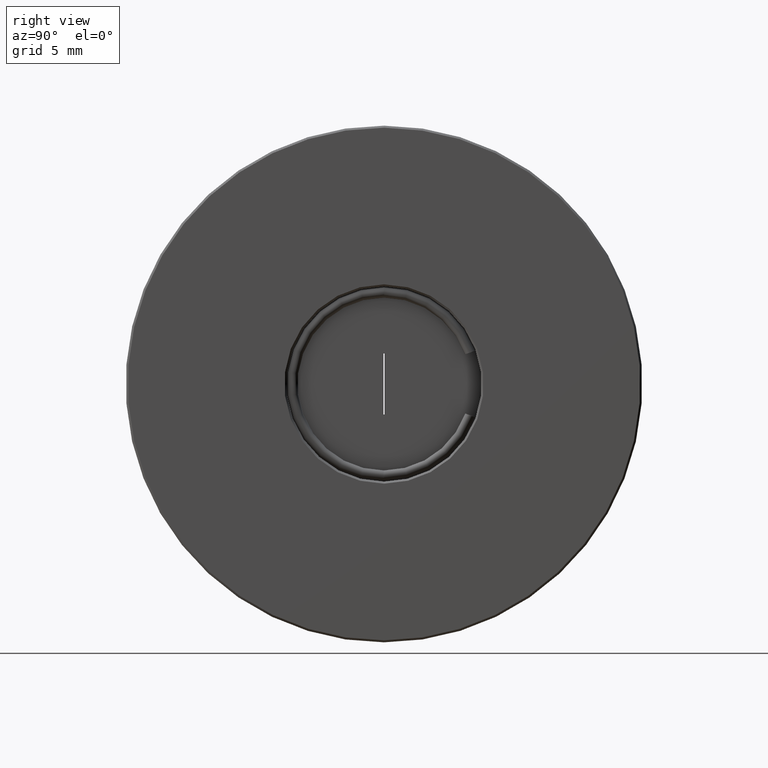
[diagram: clean part render]
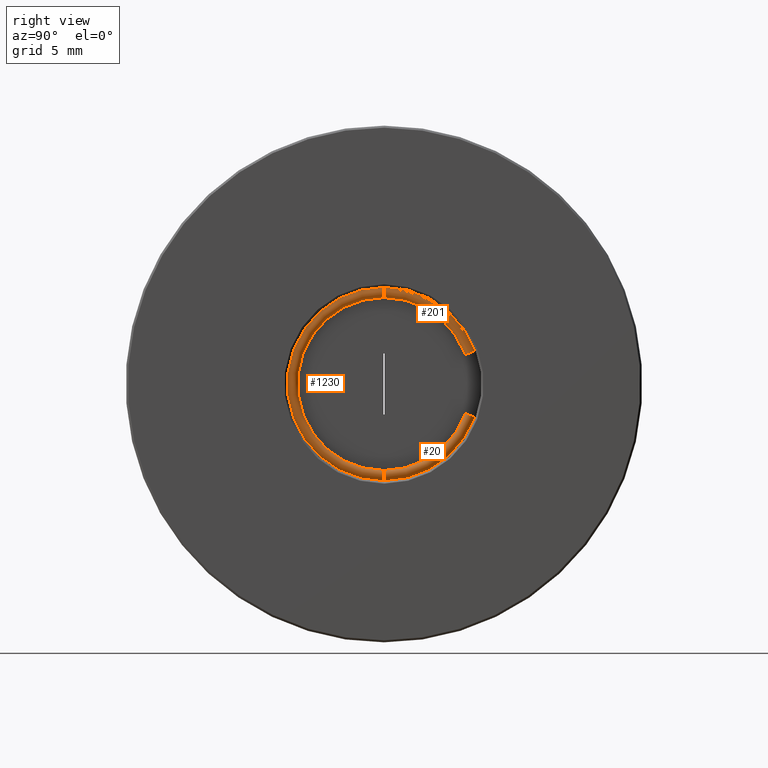
[diagram: same view with one multi-face feature highlighted, each face labeled with its STEP entity id]
A machine part, right view. The highlighted faces form ONE feature: a constant-radius fillet chain: 3 tangent blend faces with common blend radius 0.25 mm. The faces share edges in the B-rep.
Their STEP definitions:
[1] entity #201 (Torus):
#107 = DIRECTION ( 'NONE',  ( -1.221245327047478942E-15, -6.581508912423552347E-11, -1.000000000000000000 ) ) ;
#110 = EDGE_CURVE ( 'NONE', #1285, #815, #156, .T. ) ;
#156 = CIRCLE ( 'NONE', #551, 4.250000000000000000 ) ;
#172 = ORIENTED_EDGE ( 'NONE', *, *, #398, .F. ) ;
#195 = CARTESIAN_POINT ( 'NONE',  ( -4.034863851253005507, 1.436758841381168494, 29.89999999999999858 ) ) ;
#201 = ADVANCED_FACE ( 'NONE', ( #602 ), #406, .T. ) ;
#272 = ORIENTED_EDGE ( 'NONE', *, *, #955, .T. ) ;
#286 = VERTEX_POINT ( 'NONE', #308 ) ;
#308 = CARTESIAN_POINT ( 'NONE',  ( -4.034863851252984190, 5.900298789925018994, 27.02459568050306515 ) ) ;
#319 = ORIENTED_EDGE ( 'NONE', *, *, #110, .F. ) ;
#362 = AXIS2_PLACEMENT_3D ( 'NONE', #509, #1145, #1233 ) ;
#398 = EDGE_CURVE ( 'NONE', #286, #1285, #451, .T. ) ;
#406 = TOROIDAL_SURFACE ( 'NONE', #474, 4.500000000000000000, 0.2500000000000000000 ) ;
#451 = CIRCLE ( 'NONE', #622, 0.2500000000000000000 ) ;
#474 = AXIS2_PLACEMENT_3D ( 'NONE', #533, #567, #107 ) ;
#504 = CIRCLE ( 'NONE', #1312, 0.2500000000000002220 ) ;
#509 = CARTESIAN_POINT ( 'NONE',  ( -4.034863851253000178, 1.436758841085000071, 25.39999999999999858 ) ) ;
#533 = CARTESIAN_POINT ( 'NONE',  ( -4.034863851253000178, 1.436758841085000071, 25.39999999999999858 ) ) ;
#551 = AXIS2_PLACEMENT_3D ( 'NONE', #1211, #1249, #1120 ) ;
#567 = DIRECTION ( 'NONE',  ( 1.000000000000000000, -3.053113317719177725E-15, -1.221245326846538123E-15 ) ) ;
#578 = DIRECTION ( 'NONE',  ( 1.033689675075031444E-16, 0.3420201432638105277, -0.9396926208084229737 ) ) ;
#602 = FACE_OUTER_BOUND ( 'NONE', #1045, .T. ) ;
#622 = AXIS2_PLACEMENT_3D ( 'NONE', #893, #578, #1022 ) ;
#631 = ORIENTED_EDGE ( 'NONE', *, *, #658, .T. ) ;
#658 = EDGE_CURVE ( 'NONE', #286, #1351, #987, .T. ) ;
#815 = VERTEX_POINT ( 'NONE', #865 ) ;
#865 = CARTESIAN_POINT ( 'NONE',  ( -4.034863851252997513, 1.436758841364714767, 29.64999999999999858 ) ) ;
#893 = CARTESIAN_POINT ( 'NONE',  ( -4.034863851253018829, 5.665375634722910725, 26.93909064468711634 ) ) ;
#955 = EDGE_CURVE ( 'NONE', #1351, #815, #504, .T. ) ;
#987 = CIRCLE ( 'NONE', #362, 4.750000000000000000 ) ;
#1022 = DIRECTION ( 'NONE',  ( 3.469446951953614189E-15, -0.9396926208084209753, -0.3420201432638159122 ) ) ;
#1045 = EDGE_LOOP ( 'NONE', ( #172, #631, #272, #319 ) ) ;
#1069 = DIRECTION ( 'NONE',  ( 3.053113317638805026E-15, 1.000000000000000000, -6.581520653068446578E-11 ) ) ;
#1120 = DIRECTION ( 'NONE',  ( 3.061276722312012589E-15, 1.000000000000000000, -6.581581684878969820E-11 ) ) ;
#1145 = DIRECTION ( 'NONE',  ( 1.000000000000000000, -3.053113317719177725E-15, -1.221245326846538123E-15 ) ) ;
#1170 = CARTESIAN_POINT ( 'NONE',  ( -4.034863851252985967, 5.430452479520808673, 26.85358560887116042 ) ) ;
#1211 = CARTESIAN_POINT ( 'NONE',  ( -4.034863851253000178, 1.436758841085000071, 25.39999999999999858 ) ) ;
#1233 = DIRECTION ( 'NONE',  ( 3.104242009642707308E-15, 1.000000000000000000, -6.581577388350236595E-11 ) ) ;
#1249 = DIRECTION ( 'NONE',  ( 1.000000000000000000, -3.053113317719177725E-15, -1.221245326846538123E-15 ) ) ;
#1285 = VERTEX_POINT ( 'NONE', #1170 ) ;
#1312 = AXIS2_PLACEMENT_3D ( 'NONE', #195, #1069, #1403 ) ;
#1351 = VERTEX_POINT ( 'NONE', #1411 ) ;
#1403 = DIRECTION ( 'NONE',  ( -1.000000000000000000, 3.469446951953611033E-15, 0.000000000000000000 ) ) ;
#1411 = CARTESIAN_POINT ( 'NONE',  ( -4.034863851252993960, 1.436758841397622444, 30.14999999999999858 ) ) ;
[2] entity #1230 (Torus):
#16 = DIRECTION ( 'NONE',  ( 1.000000000000000000, -3.053113317719177725E-15, -1.221245326846538123E-15 ) ) ;
#27 = DIRECTION ( 'NONE',  ( 1.000000000000000000, -3.053113317719177725E-15, -1.221245326846538123E-15 ) ) ;
#28 = DIRECTION ( 'NONE',  ( -1.221245327047478942E-15, -6.581508912423552347E-11, -1.000000000000000000 ) ) ;
#55 = CARTESIAN_POINT ( 'NONE',  ( -4.034863851253000178, 1.436758840805285820, 21.14999999999999858 ) ) ;
#106 = ORIENTED_EDGE ( 'NONE', *, *, #674, .F. ) ;
#124 = CARTESIAN_POINT ( 'NONE',  ( -4.034863851253000178, 1.436758841085000071, 25.39999999999999858 ) ) ;
#163 = VERTEX_POINT ( 'NONE', #55 ) ;
#195 = CARTESIAN_POINT ( 'NONE',  ( -4.034863851253005507, 1.436758841381168494, 29.89999999999999858 ) ) ;
#225 = AXIS2_PLACEMENT_3D ( 'NONE', #707, #724, #1356 ) ;
#425 = TOROIDAL_SURFACE ( 'NONE', #1338, 4.500000000000000000, 0.2500000000000000000 ) ;
#491 = EDGE_LOOP ( 'NONE', ( #1314, #564, #695, #106 ) ) ;
#504 = CIRCLE ( 'NONE', #1312, 0.2500000000000002220 ) ;
#564 = ORIENTED_EDGE ( 'NONE', *, *, #731, .T. ) ;
#584 = VERTEX_POINT ( 'NONE', #1028 ) ;
#674 = EDGE_CURVE ( 'NONE', #815, #163, #962, .T. ) ;
#695 = ORIENTED_EDGE ( 'NONE', *, *, #1280, .T. ) ;
#707 = CARTESIAN_POINT ( 'NONE',  ( -4.034863851252994849, 1.436758840788832314, 20.89999999999999858 ) ) ;
#724 = DIRECTION ( 'NONE',  ( -3.053113317638805026E-15, -1.000000000000000000, 6.581508406600454517E-11 ) ) ;
#731 = EDGE_CURVE ( 'NONE', #1351, #584, #1419, .T. ) ;
#785 = FACE_OUTER_BOUND ( 'NONE', #491, .T. ) ;
#811 = CARTESIAN_POINT ( 'NONE',  ( -4.034863851253000178, 1.436758841085000071, 25.39999999999999858 ) ) ;
#815 = VERTEX_POINT ( 'NONE', #865 ) ;
#865 = CARTESIAN_POINT ( 'NONE',  ( -4.034863851252997513, 1.436758841364714767, 29.64999999999999858 ) ) ;
#908 = AXIS2_PLACEMENT_3D ( 'NONE', #1113, #27, #1240 ) ;
#944 = DIRECTION ( 'NONE',  ( 1.000000000000000000, -3.053113317719177725E-15, -1.221245326846538123E-15 ) ) ;
#955 = EDGE_CURVE ( 'NONE', #1351, #815, #504, .T. ) ;
#962 = CIRCLE ( 'NONE', #908, 4.250000000000000000 ) ;
#1028 = CARTESIAN_POINT ( 'NONE',  ( -4.034863851253006395, 1.436758840772378365, 20.64999999999999858 ) ) ;
#1069 = DIRECTION ( 'NONE',  ( 3.053113317638805026E-15, 1.000000000000000000, -6.581520653068446578E-11 ) ) ;
#1113 = CARTESIAN_POINT ( 'NONE',  ( -4.034863851253000178, 1.436758841085000071, 25.39999999999999858 ) ) ;
#1230 = ADVANCED_FACE ( 'NONE', ( #785 ), #425, .T. ) ;
#1237 = CIRCLE ( 'NONE', #225, 0.2500000000000002220 ) ;
#1240 = DIRECTION ( 'NONE',  ( 3.061276722312012589E-15, 1.000000000000000000, -6.581581684878969820E-11 ) ) ;
#1280 = EDGE_CURVE ( 'NONE', #584, #163, #1237, .T. ) ;
#1312 = AXIS2_PLACEMENT_3D ( 'NONE', #195, #1069, #1403 ) ;
#1314 = ORIENTED_EDGE ( 'NONE', *, *, #955, .F. ) ;
#1338 = AXIS2_PLACEMENT_3D ( 'NONE', #124, #16, #28 ) ;
#1347 = AXIS2_PLACEMENT_3D ( 'NONE', #811, #944, #1382 ) ;
#1351 = VERTEX_POINT ( 'NONE', #1411 ) ;
#1356 = DIRECTION ( 'NONE',  ( 1.000000000000000000, -3.469446951953611033E-15, 0.000000000000000000 ) ) ;
#1382 = DIRECTION ( 'NONE',  ( 3.104242009642707308E-15, 1.000000000000000000, -6.581577388350236595E-11 ) ) ;
#1403 = DIRECTION ( 'NONE',  ( -1.000000000000000000, 3.469446951953611033E-15, 0.000000000000000000 ) ) ;
#1411 = CARTESIAN_POINT ( 'NONE',  ( -4.034863851252993960, 1.436758841397622444, 30.14999999999999858 ) ) ;
#1419 = CIRCLE ( 'NONE', #1347, 4.750000000000000000 ) ;
[3] entity #20 (Torus):
#20 = ADVANCED_FACE ( 'NONE', ( #1143 ), #114, .T. ) ;
#55 = CARTESIAN_POINT ( 'NONE',  ( -4.034863851253000178, 1.436758840805285820, 21.14999999999999858 ) ) ;
#59 = ORIENTED_EDGE ( 'NONE', *, *, #1280, .F. ) ;
#68 = CIRCLE ( 'NONE', #596, 4.750000000000000000 ) ;
#75 = ORIENTED_EDGE ( 'NONE', *, *, #569, .T. ) ;
#114 = TOROIDAL_SURFACE ( 'NONE', #592, 4.500000000000000000, 0.2500000000000000000 ) ;
#163 = VERTEX_POINT ( 'NONE', #55 ) ;
#207 = AXIS2_PLACEMENT_3D ( 'NONE', #1252, #813, #927 ) ;
#225 = AXIS2_PLACEMENT_3D ( 'NONE', #707, #724, #1356 ) ;
#254 = DIRECTION ( 'NONE',  ( 3.104242009642707308E-15, 1.000000000000000000, -6.581577388350236595E-11 ) ) ;
#478 = AXIS2_PLACEMENT_3D ( 'NONE', #514, #1386, #632 ) ;
#482 = DIRECTION ( 'NONE',  ( 1.000000000000000000, -3.053113317719177725E-15, -1.221245326846538123E-15 ) ) ;
#499 = EDGE_CURVE ( 'NONE', #163, #765, #529, .T. ) ;
#514 = CARTESIAN_POINT ( 'NONE',  ( -4.034863851253018829, 5.665375634520317227, 23.86090935475618835 ) ) ;
#529 = CIRCLE ( 'NONE', #207, 4.250000000000000000 ) ;
#569 = EDGE_CURVE ( 'NONE', #584, #1175, #68, .T. ) ;
#582 = CARTESIAN_POINT ( 'NONE',  ( -4.034863851252988631, 5.900298789711156289, 23.77540431890931671 ) ) ;
#584 = VERTEX_POINT ( 'NONE', #1028 ) ;
#592 = AXIS2_PLACEMENT_3D ( 'NONE', #1315, #670, #1219 ) ;
#596 = AXIS2_PLACEMENT_3D ( 'NONE', #610, #482, #254 ) ;
#610 = CARTESIAN_POINT ( 'NONE',  ( -4.034863851253000178, 1.436758841085000071, 25.39999999999999858 ) ) ;
#632 = DIRECTION ( 'NONE',  ( 3.469446951953611033E-15, -0.9396926207634005435, 0.3420201433875083574 ) ) ;
#670 = DIRECTION ( 'NONE',  ( 1.000000000000000000, -3.053113317719177725E-15, -1.221245326846538123E-15 ) ) ;
#707 = CARTESIAN_POINT ( 'NONE',  ( -4.034863851252994849, 1.436758840788832314, 20.89999999999999858 ) ) ;
#724 = DIRECTION ( 'NONE',  ( -3.053113317638805026E-15, -1.000000000000000000, 6.581508406600454517E-11 ) ) ;
#765 = VERTEX_POINT ( 'NONE', #1056 ) ;
#813 = DIRECTION ( 'NONE',  ( 1.000000000000000000, -3.053113317719177725E-15, -1.221245326846538123E-15 ) ) ;
#927 = DIRECTION ( 'NONE',  ( 3.061276722312012589E-15, 1.000000000000000000, -6.581581684878969820E-11 ) ) ;
#948 = EDGE_CURVE ( 'NONE', #1175, #765, #1103, .T. ) ;
#989 = ORIENTED_EDGE ( 'NONE', *, *, #948, .T. ) ;
#1028 = CARTESIAN_POINT ( 'NONE',  ( -4.034863851253006395, 1.436758840772378365, 20.64999999999999858 ) ) ;
#1038 = ORIENTED_EDGE ( 'NONE', *, *, #499, .F. ) ;
#1056 = CARTESIAN_POINT ( 'NONE',  ( -4.034863851252989519, 5.430452479329460402, 23.94641439060306709 ) ) ;
#1103 = CIRCLE ( 'NONE', #478, 0.2500000000000002220 ) ;
#1143 = FACE_OUTER_BOUND ( 'NONE', #1281, .T. ) ;
#1175 = VERTEX_POINT ( 'NONE', #582 ) ;
#1219 = DIRECTION ( 'NONE',  ( -1.221245327047478942E-15, -6.581508912423552347E-11, -1.000000000000000000 ) ) ;
#1237 = CIRCLE ( 'NONE', #225, 0.2500000000000002220 ) ;
#1252 = CARTESIAN_POINT ( 'NONE',  ( -4.034863851253000178, 1.436758841085000071, 25.39999999999999858 ) ) ;
#1280 = EDGE_CURVE ( 'NONE', #584, #163, #1237, .T. ) ;
#1281 = EDGE_LOOP ( 'NONE', ( #59, #75, #989, #1038 ) ) ;
#1315 = CARTESIAN_POINT ( 'NONE',  ( -4.034863851253000178, 1.436758841085000071, 25.39999999999999858 ) ) ;
#1356 = DIRECTION ( 'NONE',  ( 1.000000000000000000, -3.469446951953611033E-15, 0.000000000000000000 ) ) ;
#1386 = DIRECTION ( 'NONE',  ( 2.191821476484100505E-15, -0.3420201433875058039, -0.9396926207634015427 ) ) ;